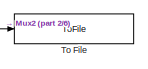
[diagram: root canvas - part 1/6, top center region]
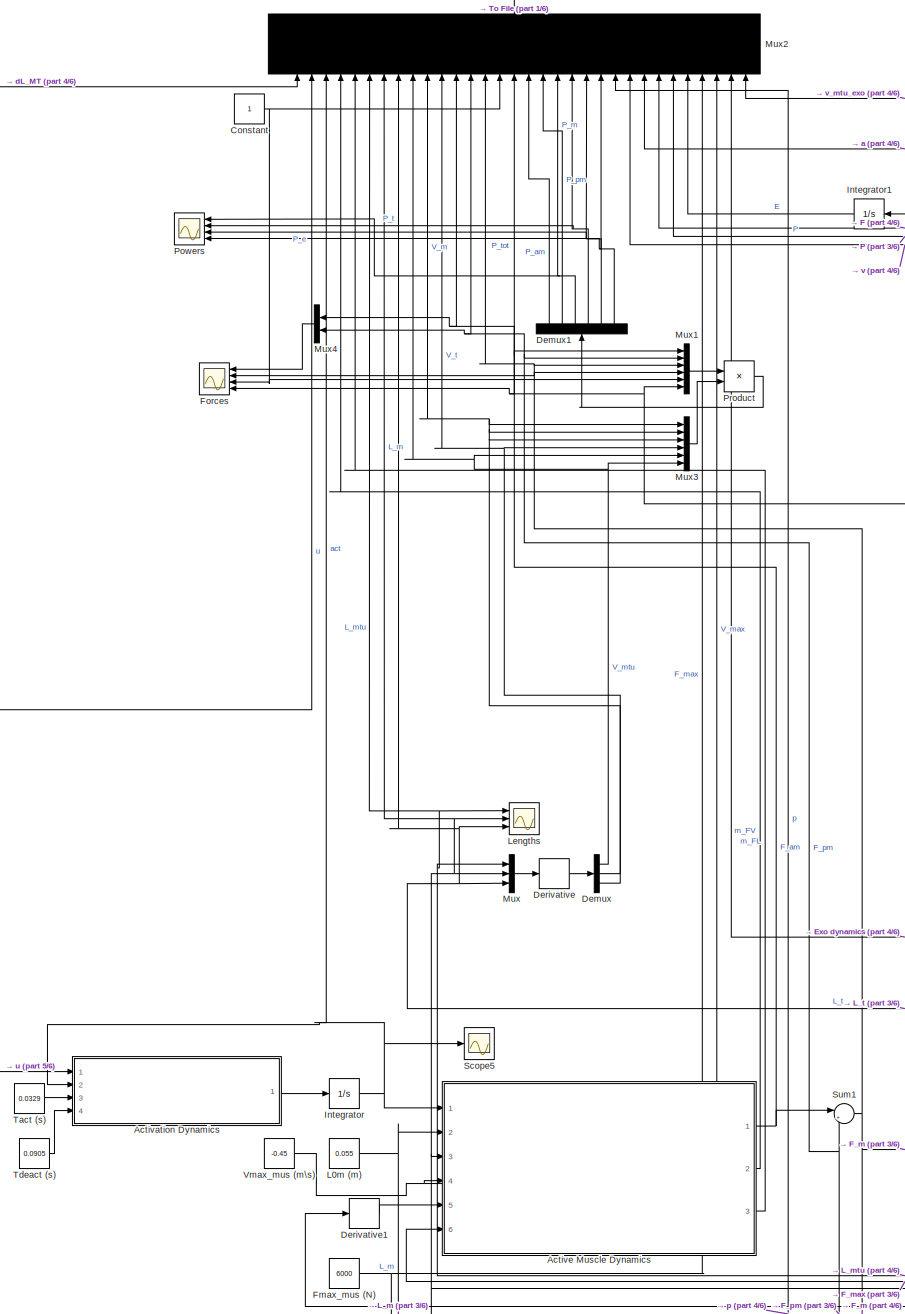
[diagram: root canvas - part 2/6, central region]
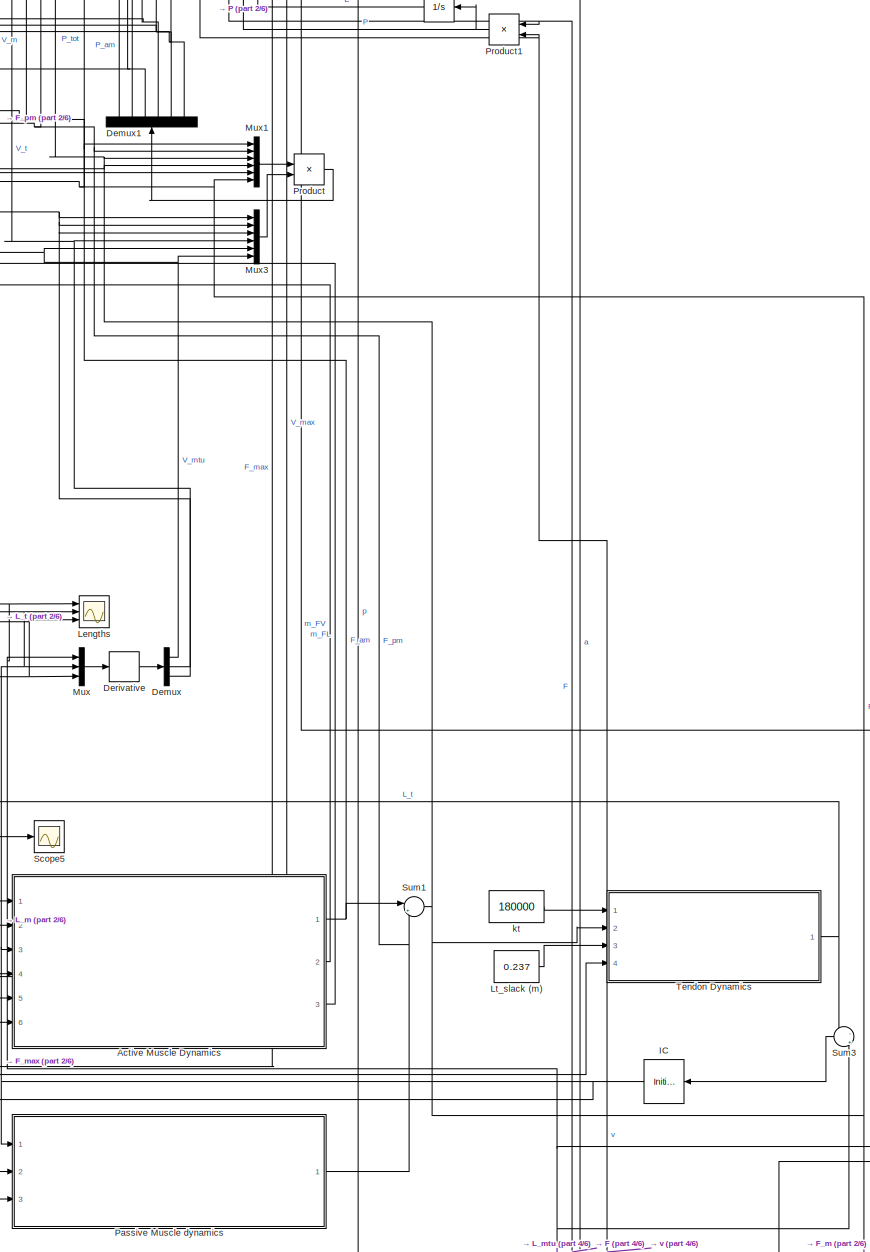
[diagram: root canvas - part 3/6, central region]
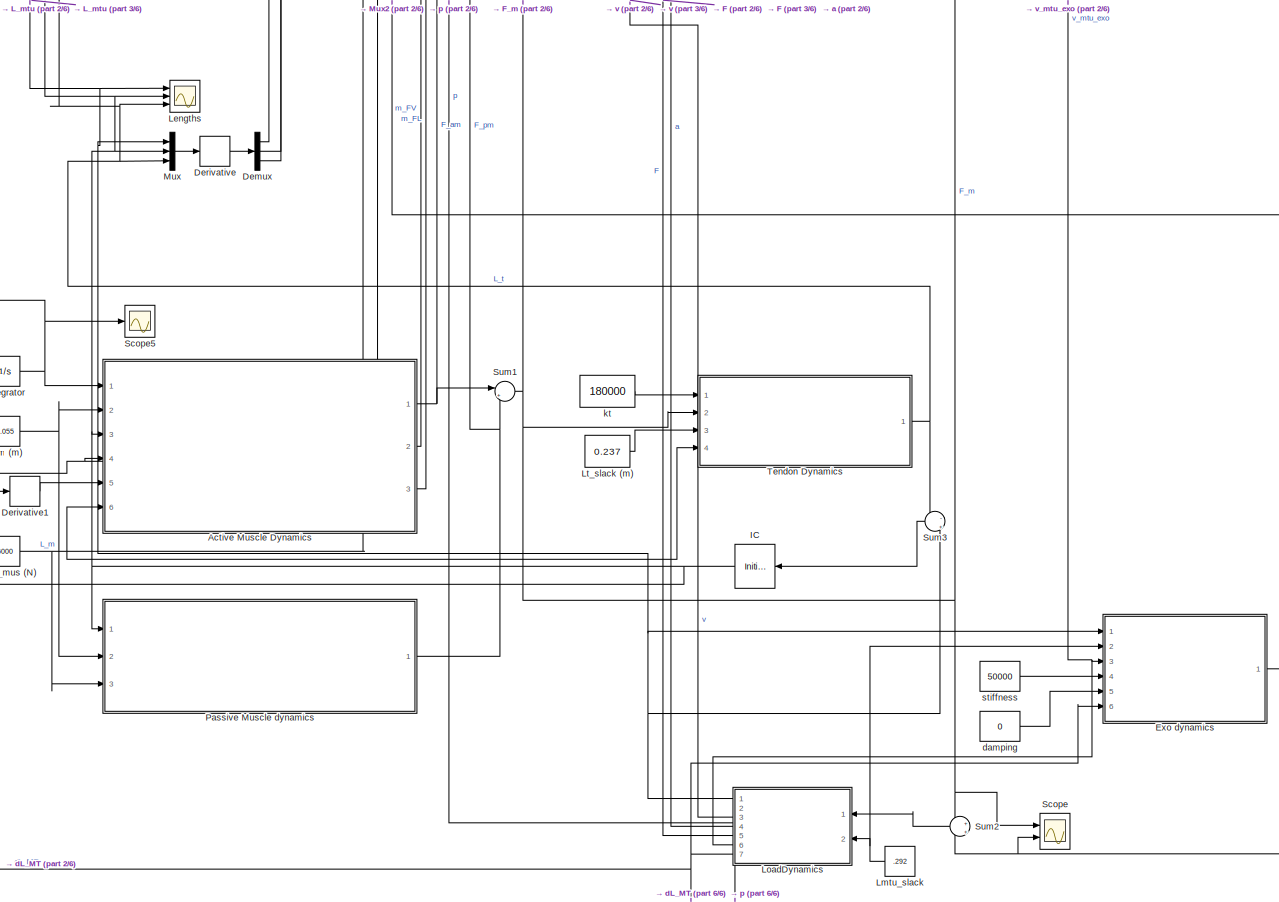
[diagram: root canvas - part 4/6, bottom center region]
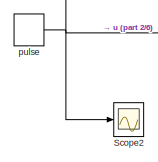
[diagram: root canvas - part 5/6, bottom left region]
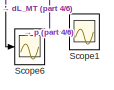
[diagram: root canvas - part 6/6, bottom right region]
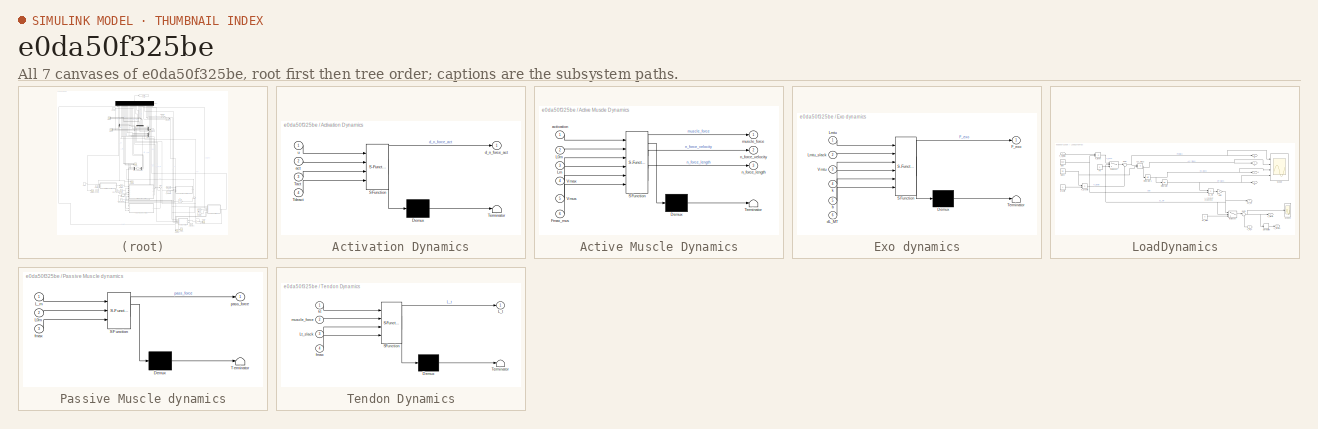
[diagram: thumbnail index - all 7 canvases of the model, root first then tree order]
MODEL slx_e0da50f325be
KIND model
CONFIG AbsTol = auto
CONFIG EnableMultiTasking = off
CONFIG FixedStep = auto
CONFIG MaxStep = auto
CONFIG MinStep = auto
CONFIG RelTol = 1e-3
CONFIG SampleTimeConstraint = Unconstrained
CONFIG SolverName = ode4
CONFIG StartTime = 0.0
CONFIG StopTime = 10.0
BLOCK [SubSystem] Activation Dynamics
  ErrorFcn = Stateflow.Translate.translate
  NameLocation = top
  PermitHierarchicalResolution = ExplicitOnly
  Ports = [4, 1]
  RequestExecContextInheritance = off
  SFBlockType = MATLAB Function
  TreatAsAtomicUnit = on
BLOCK [Demux] Activation Dynamics/ Demux 
  Outputs = 1
  Ports = [1, 1]
BLOCK [S-Function] Activation Dynamics/ SFunction 
  EnableBusSupport = on
  FunctionName = sf_sfun
  PortCounts = [4 2]
  Ports = [4, 2]
  SFcnIsStateOwnerBlock = off
  SFunctionDeploymentMode = off
  Tag = Stateflow S-Function 4
BLOCK [Terminator] Activation Dynamics/ Terminator 
BLOCK [Inport] Activation Dynamics/Tact
  Port = 3
BLOCK [Inport] Activation Dynamics/Tdeact
  Port = 4
BLOCK [Inport] Activation Dynamics/act
  Port = 2
BLOCK [Outport] Activation Dynamics/d_n_force_act
BLOCK [Inport] Activation Dynamics/u
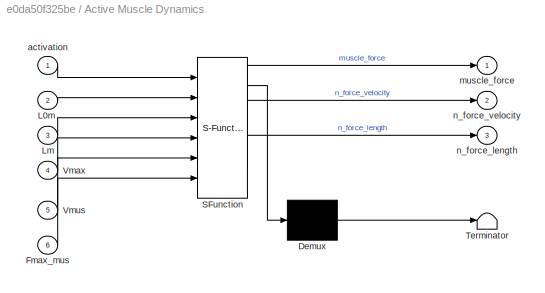
BLOCK [SubSystem] Active Muscle Dynamics
  ErrorFcn = Stateflow.Translate.translate
  PermitHierarchicalResolution = ExplicitOnly
  Ports = [6, 3]
  RequestExecContextInheritance = off
  SFBlockType = MATLAB Function
BLOCK [Demux] Active Muscle Dynamics/ Demux 
  Outputs = 1
  Ports = [1, 1]
BLOCK [S-Function] Active Muscle Dynamics/ SFunction 
  EnableBusSupport = on
  FunctionName = sf_sfun
  PortCounts = [6 4]
  Ports = [6, 4]
  SFcnIsStateOwnerBlock = off
  SFunctionDeploymentMode = off
  Tag = Stateflow S-Function 2
BLOCK [Terminator] Active Muscle Dynamics/ Terminator 
BLOCK [Inport] Active Muscle Dynamics/Fmax_mus
  Port = 6
BLOCK [Inport] Active Muscle Dynamics/L0m
  Port = 2
BLOCK [Inport] Active Muscle Dynamics/Lm
  Port = 3
BLOCK [Inport] Active Muscle Dynamics/Vmax
  Port = 4
BLOCK [Inport] Active Muscle Dynamics/Vmus
  Port = 5
BLOCK [Inport] Active Muscle Dynamics/activation
BLOCK [Outport] Active Muscle Dynamics/muscle_force
BLOCK [Outport] Active Muscle Dynamics/n_force_length
  Port = 3
BLOCK [Outport] Active Muscle Dynamics/n_force_velocity
  Port = 2
BLOCK [Constant] Constant
BLOCK [Demux] Demux
  Outputs = 3
  Ports = [1, 3]
BLOCK [Demux] Demux1
  NameLocation = right
  Outputs = 6
  Ports = [1, 6]
BLOCK [Derivative] Derivative
BLOCK [Derivative] Derivative1
BLOCK [SubSystem] Exo dynamics
  ErrorFcn = Stateflow.Translate.translate
  PermitHierarchicalResolution = ExplicitOnly
  Ports = [6, 1]
  RequestExecContextInheritance = off
  SFBlockType = MATLAB Function
  TreatAsAtomicUnit = on
BLOCK [Demux] Exo dynamics/ Demux 
  Outputs = 1
  Ports = [1, 1]
BLOCK [S-Function] Exo dynamics/ SFunction 
  EnableBusSupport = on
  FunctionName = sf_sfun
  PortCounts = [6 2]
  Ports = [6, 2]
  SFcnIsStateOwnerBlock = off
  SFunctionDeploymentMode = off
  Tag = Stateflow S-Function 1
BLOCK [Terminator] Exo dynamics/ Terminator 
BLOCK [Outport] Exo dynamics/F_exo
BLOCK [Inport] Exo dynamics/Lmtu
BLOCK [Inport] Exo dynamics/Lmtu_slack
  Port = 2
BLOCK [Inport] Exo dynamics/Vmtu
  Port = 3
BLOCK [Inport] Exo dynamics/b
  Port = 5
BLOCK [Inport] Exo dynamics/dL_MT
  Port = 6
BLOCK [Inport] Exo dynamics/k
  Port = 4
BLOCK [Constant] Fmax_mus (N)
  Value = 6000
BLOCK [Scope] Forces
  Floating = off
  NameLocation = top
  NumInputPorts = 4
  Ports = [4]
  ScopeSpecificationString = Simulink.scopes.TimeScopeBlockCfg('CurrentConfiguration', extmgr.ConfigurationSet(extmgr.Configuration('Core','General UI',true),extmgr.Configuration('Core','Source UI',true),extmgr.Configuration('Sources','WiredSimulink',true,'DataLoggingVariableName','ScopeData1'),extmgr.Configuration('Visuals','Time Domain',true,'SerializedDisplays',{struct('MinYLimReal','-507.82629','MaxYLimReal','4570.43661',...<+3437ch>
BLOCK [InitialCondition] IC
  NameLocation = top
  Value = 0.055
BLOCK [Integrator] Integrator
  Ports = [1, 1]
BLOCK [Integrator] Integrator1
  NameLocation = top
  Ports = [1, 1]
BLOCK [Constant] L0m (m)
  Value = 0.055
BLOCK [Scope] Lengths
  Floating = off
  NumInputPorts = 3
  Ports = [3]
  ScopeSpecificationString = Simulink.scopes.TimeScopeBlockCfg('CurrentConfiguration', extmgr.ConfigurationSet(extmgr.Configuration('Core','General UI',true),extmgr.Configuration('Core','Source UI',true),extmgr.Configuration('Sources','WiredSimulink',true,'DataLoggingVariableName','ScopeData2'),extmgr.Configuration('Visuals','Time Domain',true,'SerializedDisplays',{struct('MinYLimReal','0.2863','MaxYLimReal','0.34331','YLabel...<+2782ch>
BLOCK [Constant] Lmtu_slack
  Value = .292
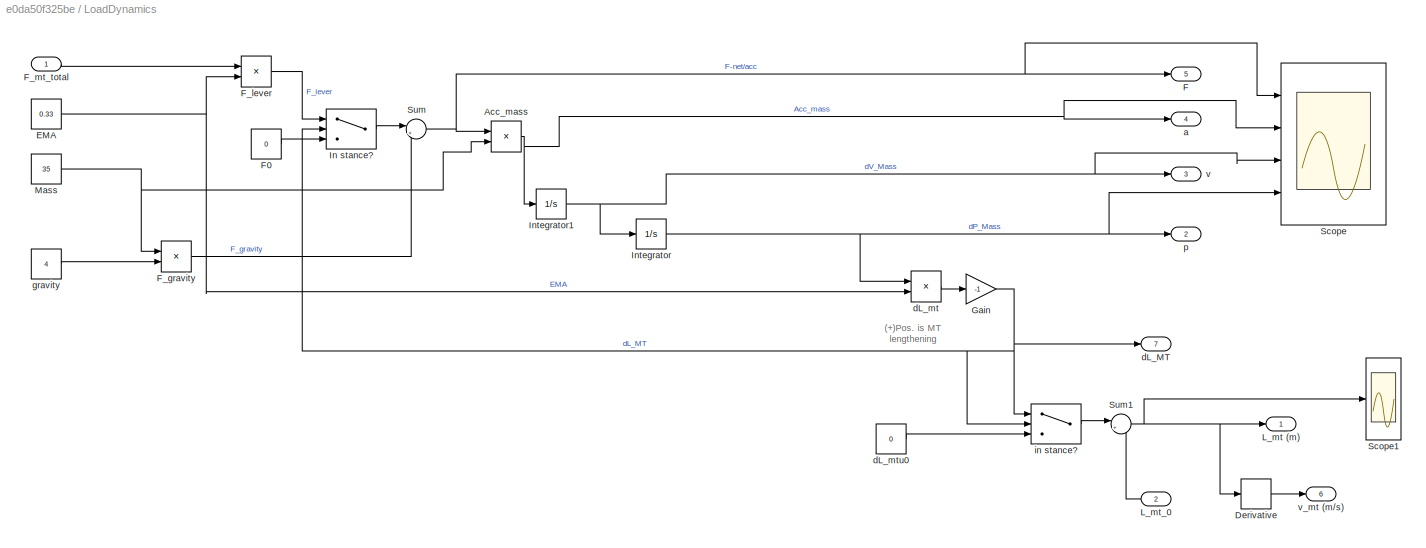
BLOCK [SubSystem] LoadDynamics
  NameLocation = top
  Ports = [2, 7]
  RequestExecContextInheritance = off
BLOCK [Product] LoadDynamics/Acc_mass
  Inputs = */
  Ports = [2, 1]
BLOCK [Derivative] LoadDynamics/Derivative
BLOCK [Constant] LoadDynamics/EMA
  Value = 0.33
BLOCK [Outport] LoadDynamics/F
  Port = 5
BLOCK [Constant] LoadDynamics/F0
  Value = 0
BLOCK [Product] LoadDynamics/F_gravity
  Ports = [2, 1]
  RndMeth = Zero
BLOCK [Product] LoadDynamics/F_lever
  Ports = [2, 1]
  RndMeth = Zero
BLOCK [Inport] LoadDynamics/F_mt_total
  NameLocation = top
BLOCK [Gain] LoadDynamics/Gain
  Gain = -1
BLOCK [Switch] LoadDynamics/In stance?
  Criteria = u2 > Threshold
  InputSameDT = off
  SaturateOnIntegerOverflow = off
BLOCK [Integrator] LoadDynamics/Integrator
  InitialCondition = 0.1
  Ports = [1, 1]
BLOCK [Integrator] LoadDynamics/Integrator1
  Ports = [1, 1]
BLOCK [Outport] LoadDynamics/L_mt (m)
BLOCK [Inport] LoadDynamics/L_mt_0
  NameLocation = top
  Port = 2
BLOCK [Constant] LoadDynamics/Mass
  Value = 35
BLOCK [Scope] LoadDynamics/Scope
  Floating = off
  NumInputPorts = 4
  Ports = [4]
  ScopeSpecificationString = Simulink.scopes.TimeScopeBlockCfg('CurrentConfiguration', extmgr.ConfigurationSet(extmgr.Configuration('Core','General UI',true),extmgr.Configuration('Core','Source UI',true),extmgr.Configuration('Sources','WiredSimulink',true,'DataLoggingVariableName','ScopeData1'),extmgr.Configuration('Visuals','Time Domain',true,'SerializedDisplays',{struct('MinYLimReal','-606.66638','MaxYLimReal','2026.49742',...<+3496ch>
BLOCK [Scope] LoadDynamics/Scope1
  Floating = off
  NumInputPorts = 1
  Ports = [1]
  ScopeSpecificationString = Simulink.scopes.TimeScopeBlockCfg('CurrentConfiguration', extmgr.ConfigurationSet(extmgr.Configuration('Core','General UI',true),extmgr.Configuration('Core','Source UI',true),extmgr.Configuration('Sources','WiredSimulink',true,'DataLoggingVariableName','ScopeData1'),extmgr.Configuration('Visuals','Time Domain',true,'SerializedDisplays',{struct('MinYLimReal','0.28626','MaxYLimReal','0.34362','YLabe...<+1394ch>
BLOCK [Sum] LoadDynamics/Sum
  Inputs = |+-
  Ports = [2, 1]
BLOCK [Sum] LoadDynamics/Sum1
  Inputs = |++
  Ports = [2, 1]
BLOCK [Outport] LoadDynamics/a
  Port = 4
BLOCK [Outport] LoadDynamics/dL_MT
  Port = 7
BLOCK [Product] LoadDynamics/dL_mt
  Ports = [2, 1]
  RndMeth = Zero
BLOCK [Constant] LoadDynamics/dL_mtu0
  Value = 0
BLOCK [Constant] LoadDynamics/gravity
  Value = 4
BLOCK [Switch] LoadDynamics/in stance? 
  Criteria = u2 > Threshold
  InputSameDT = off
  SaturateOnIntegerOverflow = off
BLOCK [Outport] LoadDynamics/p
  Port = 2
BLOCK [Outport] LoadDynamics/v
  Port = 3
BLOCK [Outport] LoadDynamics/v_mt (m//s)
  Port = 6
BLOCK [Constant] Lt_slack (m)
  Value = 0.237
BLOCK [Mux] Mux
  DisplayOption = bar
  Inputs = 3
  Ports = [3, 1]
BLOCK [Mux] Mux1
  DisplayOption = bar
  Inputs = 6
  Ports = [6, 1]
BLOCK [Mux] Mux2
  DisplayOption = signals
  Inputs = 33
  NameLocation = right
  Ports = [33, 1]
BLOCK [Mux] Mux3
  DisplayOption = bar
  Inputs = 6
  Ports = [6, 1]
BLOCK [Mux] Mux4
  DisplayOption = bar
  Inputs = 2
  NameLocation = top
  Ports = [2, 1]
BLOCK [SubSystem] Passive Muscle dynamics
  ErrorFcn = Stateflow.Translate.translate
  NameLocation = top
  PermitHierarchicalResolution = ExplicitOnly
  Ports = [3, 1]
  RequestExecContextInheritance = off
  SFBlockType = MATLAB Function
BLOCK [Demux] Passive Muscle dynamics/ Demux 
  Outputs = 1
  Ports = [1, 1]
BLOCK [S-Function] Passive Muscle dynamics/ SFunction 
  EnableBusSupport = on
  FunctionName = sf_sfun
  PortCounts = [3 2]
  Ports = [3, 2]
  SFcnIsStateOwnerBlock = off
  SFunctionDeploymentMode = off
  Tag = Stateflow S-Function 5
BLOCK [Terminator] Passive Muscle dynamics/ Terminator 
BLOCK [Inport] Passive Muscle dynamics/L0m
  Port = 2
BLOCK [Inport] Passive Muscle dynamics/L_m
BLOCK [Inport] Passive Muscle dynamics/fmax
  Port = 3
BLOCK [Outport] Passive Muscle dynamics/pass_force
BLOCK [Scope] Powers
  Floating = off
  NameLocation = top
  NumInputPorts = 4
  Ports = [4]
  ScopeSpecificationString = Simulink.scopes.TimeScopeBlockCfg('CurrentConfiguration', extmgr.ConfigurationSet(extmgr.Configuration('Core','General UI',true),extmgr.Configuration('Core','Source UI',true),extmgr.Configuration('Sources','WiredSimulink',true,'DataLoggingVariableName','ScopeData3'),extmgr.Configuration('Visuals','Time Domain',true,'SerializedDisplays',{struct('MinYLimReal','-425.95426','MaxYLimReal','1312.30568',...<+3470ch>
BLOCK [Product] Product
  Ports = [2, 1]
BLOCK [Product] Product1
  NameLocation = top
  Ports = [2, 1]
BLOCK [Scope] Scope
  Floating = off
  NumInputPorts = 2
  Ports = [2]
  ScopeSpecificationString = Simulink.scopes.TimeScopeBlockCfg('CurrentConfiguration', extmgr.ConfigurationSet(extmgr.Configuration('Core','General UI',true),extmgr.Configuration('Core','Source UI',true),extmgr.Configuration('Sources','WiredSimulink',true,'DataLoggingVariableName','ScopeData4'),extmgr.Configuration('Visuals','Time Domain',true,'SerializedDisplays',{struct('MinYLimReal','-231.78902','MaxYLimReal','4036.17948',...<+1801ch>
BLOCK [Scope] Scope1
  Floating = off
  NumInputPorts = 1
  Ports = [1]
  ScopeSpecificationString = Simulink.scopes.TimeScopeBlockCfg('CurrentConfiguration', extmgr.ConfigurationSet(extmgr.Configuration('Core','General UI',true),extmgr.Configuration('Core','Source UI',true),extmgr.Configuration('Sources','WiredSimulink',true,'DataLoggingVariableName','ScopeData5'),extmgr.Configuration('Visuals','Time Domain',true,'SerializedDisplays',{struct('MinYLimReal','-0.12315','MaxYLimReal','0.23552','YLab...<+1706ch>
BLOCK [Scope] Scope2
  Floating = off
  NumInputPorts = 1
  Ports = [1]
  ScopeSpecificationString = Simulink.scopes.TimeScopeBlockCfg('CurrentConfiguration', extmgr.ConfigurationSet(extmgr.Configuration('Core','General UI',true),extmgr.Configuration('Core','Source UI',true),extmgr.Configuration('Sources','WiredSimulink',true,'DataLoggingVariableName','ScopeData6'),extmgr.Configuration('Visuals','Time Domain',true,'SerializedDisplays',{struct('MinYLimReal','-0.125','MaxYLimReal','1.125','YLabelRe...<+1764ch>
BLOCK [Scope] Scope5
  Floating = off
  NumInputPorts = 1
  Ports = [1]
  ScopeSpecificationString = Simulink.scopes.TimeScopeBlockCfg('CurrentConfiguration', extmgr.ConfigurationSet(extmgr.Configuration('Core','General UI',true),extmgr.Configuration('Core','Source UI',true),extmgr.Configuration('Sources','WiredSimulink',true,'DataLoggingVariableName','ScopeData7'),extmgr.Configuration('Visuals','Time Domain',true,'SerializedDisplays',{struct('MinYLimReal','-0.125','MaxYLimReal','1.125','YLabelRe...<+1380ch>
BLOCK [Scope] Scope6
  Floating = off
  NumInputPorts = 1
  Ports = [1]
  ScopeSpecificationString = Simulink.scopes.TimeScopeBlockCfg('CurrentConfiguration', extmgr.ConfigurationSet(extmgr.Configuration('Core','General UI',true),extmgr.Configuration('Core','Source UI',true),extmgr.Configuration('Sources','WiredSimulink',true,'DataLoggingVariableName','ScopeData8'),extmgr.Configuration('Visuals','Time Domain',true,'SerializedDisplays',{struct('MinYLimReal','-0.00537','MaxYLimReal','0.00716','YLab...<+1738ch>
BLOCK [Sum] Sum1
  Inputs = |++
  Ports = [2, 1]
BLOCK [Sum] Sum2
  Inputs = +|+
  NameLocation = top
  Ports = [2, 1]
BLOCK [Sum] Sum3
  Inputs = -|+
  NameLocation = top
  Ports = [2, 1]
BLOCK [Constant] Tact (s)
  Value = 0.0329
  VectorParams1D = off
BLOCK [Constant] Tdeact (s)
  Value = 0.0905
BLOCK [SubSystem] Tendon Dynamics
  ErrorFcn = Stateflow.Translate.translate
  NameLocation = top
  PermitHierarchicalResolution = ExplicitOnly
  Ports = [4, 1]
  RequestExecContextInheritance = off
  SFBlockType = MATLAB Function
BLOCK [Demux] Tendon Dynamics/ Demux 
  Outputs = 1
  Ports = [1, 1]
BLOCK [S-Function] Tendon Dynamics/ SFunction 
  EnableBusSupport = on
  FunctionName = sf_sfun
  PortCounts = [4 2]
  Ports = [4, 2]
  SFcnIsStateOwnerBlock = off
  SFunctionDeploymentMode = off
  Tag = Stateflow S-Function 3
BLOCK [Terminator] Tendon Dynamics/ Terminator 
BLOCK [Outport] Tendon Dynamics/L_t
BLOCK [Inport] Tendon Dynamics/Lt_slack
  Port = 3
BLOCK [Inport] Tendon Dynamics/fmax
  Port = 4
BLOCK [Inport] Tendon Dynamics/kt
BLOCK [Inport] Tendon Dynamics/muscle_force
  Port = 2
BLOCK [ToFile] To File
  Filename = exoData_Old_grav_4_stiff_0.mat
  MatrixName = data
  Ports = [1]
  SaveFormat = Timeseries
BLOCK [Constant] Vmax_mus (m\s)
  Value = -0.45
BLOCK [Constant] damping
  Value = 0
BLOCK [Constant] kt
  Value = 180000
BLOCK [DiscretePulseGenerator] pulse
  NameLocation = top
  Period = 0.4
  Ports = [0, 1]
  PulseType = Time based
  PulseWidth = 10
BLOCK [Constant] stiffness
  Value = 50000
ANNOTATION LoadDynamics: (+)Pos. is MT lengthening
LINE Activation Dynamics:1 -> Integrator:1
NET Active Muscle Dynamics:1 -> Mux1:1, Mux2:13, Mux4:1, Sum1:1
LINE Active Muscle Dynamics:2 -> Mux2:5
LINE Active Muscle Dynamics:3 -> Mux2:6
NET Constant:1 -> Forces:3, Mux1:5, Mux2:16
LINE Demux1:1 -> Mux2:18
LINE Demux1:2 -> Mux2:19
NET Demux1:3 -> Mux2:20, Powers:1
NET Demux1:4 -> Mux2:21, Powers:2
NET Demux1:5 -> Mux2:22, Powers:3
NET Demux1:6 -> Mux2:23, Powers:4
NET Demux:1 -> Mux2:10, Mux3:5, Mux3:6
NET Demux:2 -> Mux2:11, Mux3:1, Mux3:2, Mux3:3
NET Demux:3 -> Mux2:12, Mux3:4
LINE Derivative1:1 -> Active Muscle Dynamics:5
LINE Derivative:1 -> Demux:1
NET Exo dynamics:1 -> Mux2:32, Scope:2, Sum2:2
NET Fmax_mus (N):1 -> Active Muscle Dynamics:6, Mux2:30, Passive Muscle dynamics:3, Tendon Dynamics:4
NET IC:1 -> Active Muscle Dynamics:3, Derivative1:1, Lengths:2, Mux2:8, Mux:2, Passive Muscle dynamics:1
LINE Integrator1:1 -> Mux2:29
NET Integrator:1 -> Activation Dynamics:2, Active Muscle Dynamics:1, Mux2:4, Scope5:1
NET L0m (m):1 -> Active Muscle Dynamics:2, Passive Muscle dynamics:2
NET Lmtu_slack:1 -> Exo dynamics:2, LoadDynamics:2
NET LoadDynamics/Acc_mass:1 -> LoadDynamics/Integrator1:1, LoadDynamics/Scope:2, LoadDynamics/a:1
LINE LoadDynamics/Derivative:1 -> LoadDynamics/v_mt (m//s):1
NET LoadDynamics/EMA:1 -> LoadDynamics/F_lever:2, LoadDynamics/dL_mt:2
LINE LoadDynamics/F0:1 -> LoadDynamics/In stance?:3
LINE LoadDynamics/F_gravity:1 -> LoadDynamics/Sum:2
LINE LoadDynamics/F_lever:1 -> LoadDynamics/In stance?:1
LINE LoadDynamics/F_mt_total:1 -> LoadDynamics/F_lever:1
NET LoadDynamics/Gain:1 -> LoadDynamics/In stance?:2, LoadDynamics/dL_MT:1, LoadDynamics/in stance? :1, LoadDynamics/in stance? :2
LINE LoadDynamics/In stance?:1 -> LoadDynamics/Sum:1
NET LoadDynamics/Integrator1:1 -> LoadDynamics/Integrator:1, LoadDynamics/Scope:3, LoadDynamics/v:1
NET LoadDynamics/Integrator:1 -> LoadDynamics/Scope:4, LoadDynamics/dL_mt:1, LoadDynamics/p:1
LINE LoadDynamics/L_mt_0:1 -> LoadDynamics/Sum1:2
NET LoadDynamics/Mass:1 -> LoadDynamics/Acc_mass:2, LoadDynamics/F_gravity:1
NET LoadDynamics/Sum1:1 -> LoadDynamics/Derivative:1, LoadDynamics/L_mt (m):1, LoadDynamics/Scope1:1
NET LoadDynamics/Sum:1 -> LoadDynamics/Acc_mass:1, LoadDynamics/F:1, LoadDynamics/Scope:1
LINE LoadDynamics/dL_mt:1 -> LoadDynamics/Gain:1
LINE LoadDynamics/dL_mtu0:1 -> LoadDynamics/in stance? :3
LINE LoadDynamics/gravity:1 -> LoadDynamics/F_gravity:2
LINE LoadDynamics/in stance? :1 -> LoadDynamics/Sum1:1
NET LoadDynamics:1 -> Exo dynamics:1, Lengths:1, Mux2:7, Mux:1, Sum3:2
NET LoadDynamics:2 -> Mux2:24, Scope1:1
NET LoadDynamics:3 -> Mux2:25, Product1:2
LINE LoadDynamics:4 -> Mux2:26
NET LoadDynamics:5 -> Mux2:27, Product1:1
NET LoadDynamics:6 -> Exo dynamics:3, Mux2:33
NET LoadDynamics:7 -> Exo dynamics:6, Mux2:2, Scope6:1
LINE Lt_slack (m):1 -> Tendon Dynamics:3
LINE Mux1:1 -> Product:1
LINE Mux2:1 -> To File:1
LINE Mux3:1 -> Product:2
LINE Mux4:1 -> Forces:1
LINE Mux:1 -> Derivative:1
NET Passive Muscle dynamics:1 -> Mux1:2, Mux2:14, Mux4:2, Sum1:2
NET Product1:1 -> Integrator1:1, Mux2:28
LINE Product:1 -> Demux1:1
NET Sum1:1 -> Forces:2, Forces:4, Mux1:3, Mux1:4, Mux1:6, Mux2:15, Mux2:17, Scope:1, Sum2:1, Tendon Dynamics:2
LINE Sum2:1 -> LoadDynamics:1
LINE Sum3:1 -> IC:1
LINE Tact (s):1 -> Activation Dynamics:3
LINE Tdeact (s):1 -> Activation Dynamics:4
NET Tendon Dynamics:1 -> Lengths:3, Mux2:9, Mux:3, Sum3:1
NET Vmax_mus (m\s):1 -> Active Muscle Dynamics:4, Mux2:31
LINE damping:1 -> Exo dynamics:5
LINE kt:1 -> Tendon Dynamics:1
NET pulse:1 -> Activation Dynamics:1, Mux2:3, Scope2:1
LINE stiffness:1 -> Exo dynamics:4
note: NET lines group one-source signal fan-out (src -> all destinations, sorted); 1:1 wires keep LINE
CHART Exo dynamics states=1 transitions=1
  STATE_LABEL 'eML_blk_kernel()'
  STATE_LABEL 'SCRIPT:\nfunction F_exo  = exo_dynamics(Lmtu, Lmtu_slack, Vmtu, k, b, dL_MT)\n\ndL_MT = -dL_MT;\n\n    if dL_MT > 0 %Check if landing\n        F_exo = k*(Lmtu-Lmtu_slack) - Vmtu*b;\n\n    else \n        F_exo = k*(Lmtu-Lmtu_slack);\n    end\n\nend'
CHART Active Muscle Dynamics states=1 transitions=1
  STATE_LABEL 'eML_blk_kernel()'
  STATE_LABEL 'SCRIPT:\nfunction [muscle_force, n_force_velocity, n_force_length]  =...\n    muscle_dynamics(activation,L0m,Lm,Vmax,Vmus,Fmax_mus)\n%#codegen\n\n    %Hill Type Muscle F-V relationship.  Returns a normalized force-velocity value\n    if (Vmus<Vmax)\n        n_force_velocity=0;\n    else\n        if (Vmus >= Vmax && Vmus < 0)\n            n_force_velocity = ((1-(Vmus/Vmax))/(1+(Vmus/0.17/Vmax)));\n        els...<+482ch>'
CHART Tendon Dynamics states=1 transitions=1
  STATE_LABEL 'eML_blk_kernel()'
  STATE_LABEL 'SCRIPT:\nfunction L_t = L_tendon(kt,muscle_force,Lt_slack,fmax)\n%#codegen\n\n%Total tendon length\n%kt_comp = @(fm) 1./(kt*(1+(0.9./((-exp((20*fm)./fmax))))));\ndL_t = ((muscle_force + (fmax*log((-9*exp(-(20*muscle_force)/fmax)) + 10))/20)/kt);\nL_t = dL_t + Lt_slack ;\n\nend\n'
CHART Activation Dynamics states=1 transitions=1
  STATE_LABEL 'eML_blk_kernel()'
  STATE_LABEL 'SCRIPT:\nfunction d_n_force_act = d_n_force_act(u,act,Tact,Tdeact)\n%#codegen    \n%Rate of change of activation\n    B=Tact/Tdeact;\n    d_n_force_act= u/Tact - (1/Tact*(B+(1-B)*u))*act;\nend\n'
CHART Passive Muscle dynamics states=1 transitions=1
  STATE_LABEL 'eML_blk_kernel()'
  STATE_LABEL 'SCRIPT:\nfunction pass_force = pmuscle_dynamics(L_m, L0m,fmax)\n%#codegen\n%passive CE F_L taken from Rubenson et. al.\n\n%Passive muscle force\nA = 2.38*10^(-2);\nb = 5.31;\n\nif L_m > 0    \n    pass_force= fmax*A*exp(b*((L_m/L0m)-1));\nelse\n    pass_force=0;\nend\n\n\nend'
CHART  states=0 transitions=0
CHART  states=0 transitions=0
CHART  states=0 transitions=0
CHART  states=0 transitions=0
CHART  states=0 transitions=0
